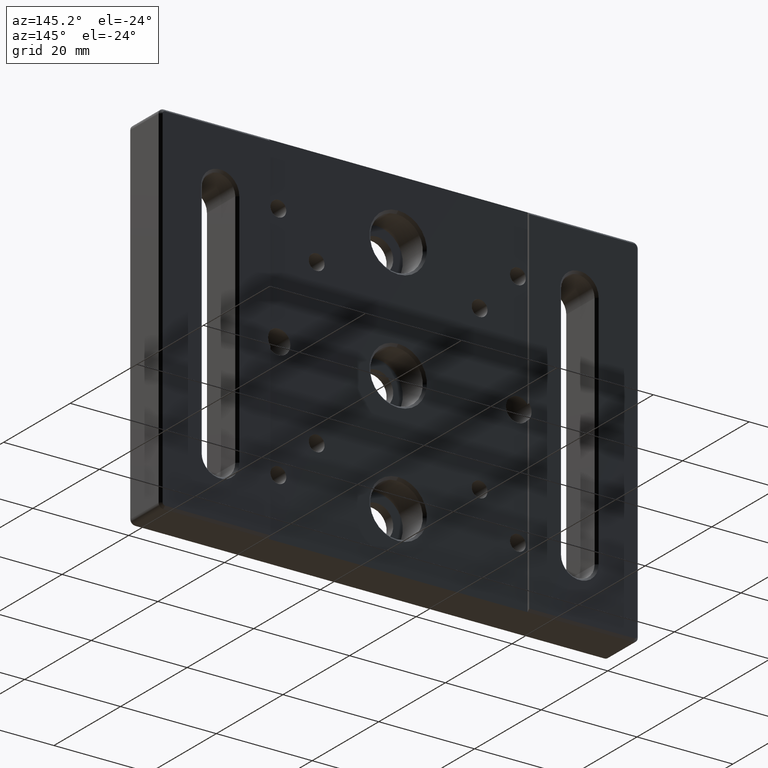
[diagram: clean part render]
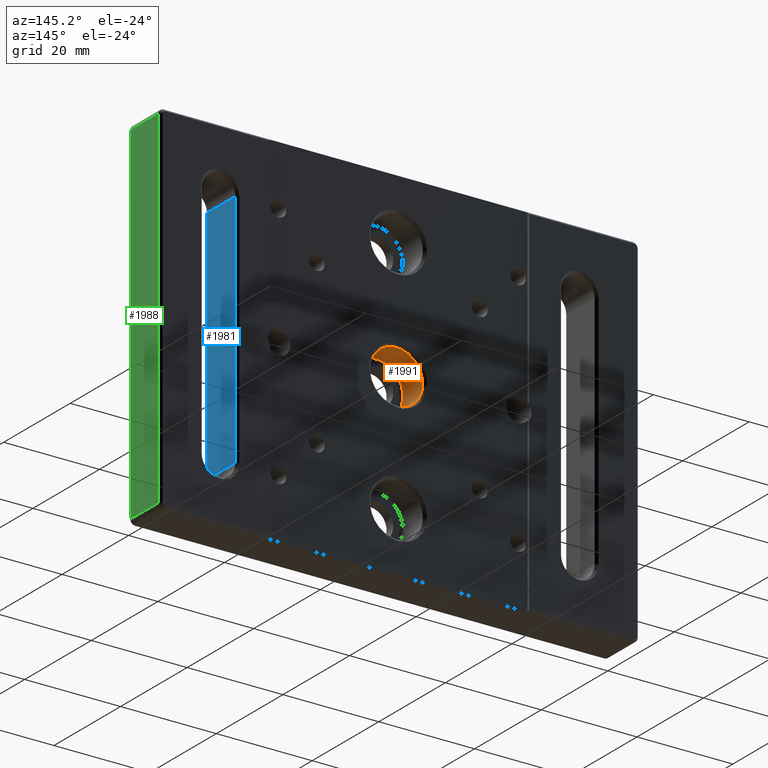
[diagram: same view with three faces highlighted in distinct colors, each labeled with its STEP entity id]
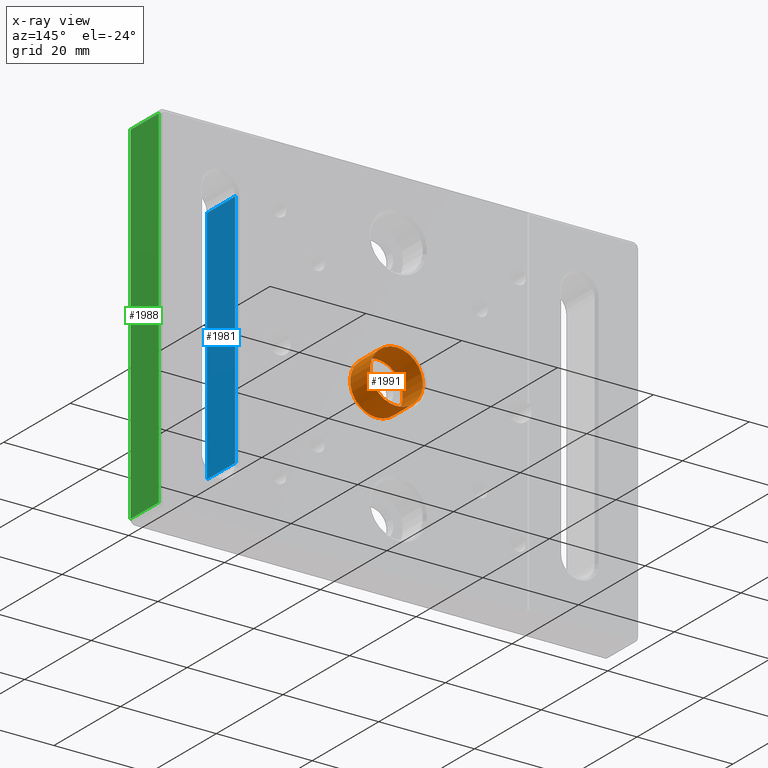
[diagram: x-ray of the same camera — body ghosted, the three highlighted faces saturated]
A machine part, auxiliary view with three faces highlighted in distinct colors.
The next image is the same camera in x-ray (body ghosted, the three faces saturated) — at least one of them is partly hidden behind the body in this view.
Their STEP definitions:

[orange] entity #1991 — the highlighted cylindrical surface (bore or boss wall) has radius 5.5 mm, axis along (-0, 1, -0).
#322 = AXIS2_PLACEMENT_3D ( 'NONE', #1350, #1347, #1343 ) ;
#368 = EDGE_CURVE ( 'NONE', #2022, #2022, #1725, .T. ) ;
#369 = EDGE_CURVE ( 'NONE', #2021, #2021, #1724, .T. ) ;
#553 = CARTESIAN_POINT ( 'NONE',  ( 50.00000000000000000, 2.499999999999999600, -32.00000000000000000 ) ) ;
#554 = CARTESIAN_POINT ( 'NONE',  ( 50.00000000000000000, 8.499999999999998200, -32.00000000000000000 ) ) ;
#637 = CARTESIAN_POINT ( 'NONE',  ( 50.00000000000000000, 2.499999999999999600, -37.50000000000000000 ) ) ;
#638 = DIRECTION ( 'NONE',  ( 0.0000000000000000000, 1.000000000000000000, 0.0000000000000000000 ) ) ;
#639 = DIRECTION ( 'NONE',  ( 0.0000000000000000000, 0.0000000000000000000, 1.000000000000000000 ) ) ;
#641 = CARTESIAN_POINT ( 'NONE',  ( 50.00000000000000000, 8.499999999999998200, -37.50000000000000000 ) ) ;
#642 = DIRECTION ( 'NONE',  ( -0.0000000000000000000, 1.000000000000000000, -0.0000000000000000000 ) ) ;
#643 = DIRECTION ( 'NONE',  ( 0.0000000000000000000, 0.0000000000000000000, 1.000000000000000000 ) ) ;
#885 = AXIS2_PLACEMENT_3D ( 'NONE', #637, #638, #639 ) ;
#886 = AXIS2_PLACEMENT_3D ( 'NONE', #641, #642, #643 ) ;
#991 = EDGE_LOOP ( 'NONE', ( #1031 ) ) ;
#1007 = EDGE_LOOP ( 'NONE', ( #1038 ) ) ;
#1031 = ORIENTED_EDGE ( 'NONE', *, *, #368, .F. ) ;
#1038 = ORIENTED_EDGE ( 'NONE', *, *, #369, .T. ) ;
#1343 = DIRECTION ( 'NONE',  ( 0.0000000000000000000, 0.0000000000000000000, 1.000000000000000000 ) ) ;
#1347 = DIRECTION ( 'NONE',  ( -0.0000000000000000000, 1.000000000000000000, -0.0000000000000000000 ) ) ;
#1350 = CARTESIAN_POINT ( 'NONE',  ( 50.00000000000000000, 2.499999999999999600, -37.50000000000000000 ) ) ;
#1724 = CIRCLE ( 'NONE', #886, 5.499999999999998200 ) ;
#1725 = CIRCLE ( 'NONE', #885, 5.499999999999998200 ) ;
#1991 = ADVANCED_FACE ( 'NONE', ( #2065, #2062 ), #2060, .F. ) ;
#2021 = VERTEX_POINT ( 'NONE', #554 ) ;
#2022 = VERTEX_POINT ( 'NONE', #553 ) ;
#2060 = CYLINDRICAL_SURFACE ( 'NONE', #322, 5.499999999999998200 ) ;
#2062 = FACE_OUTER_BOUND ( 'NONE', #991, .T. ) ;
#2065 = FACE_OUTER_BOUND ( 'NONE', #1007, .T. ) ;

[blue] entity #1981 — the highlighted planar face has unit normal (1, 0, -0).
#52 = CARTESIAN_POINT ( 'NONE',  ( 84.00000000000004300, 9.500000000000000000, -12.49999999999999600 ) ) ;
#56 = DIRECTION ( 'NONE',  ( -0.0000000000000000000, -1.000000000000000000, -0.0000000000000000000 ) ) ;
#214 = CARTESIAN_POINT ( 'NONE',  ( 84.00000000000000000, 9.500000000000000000, -62.50000000000000000 ) ) ;
#215 = DIRECTION ( 'NONE',  ( -0.0000000000000000000, -1.000000000000000000, -0.0000000000000000000 ) ) ;
#312 = AXIS2_PLACEMENT_3D ( 'NONE', #1307, #1315, #1316 ) ;
#343 = EDGE_CURVE ( 'NONE', #2363, #2354, #1765, .T. ) ;
#402 = EDGE_CURVE ( 'NONE', #966, #2377, #1678, .T. ) ;
#465 = EDGE_CURVE ( 'NONE', #2377, #2363, #1578, .T. ) ;
#523 = CARTESIAN_POINT ( 'NONE',  ( 84.00000000000004300, 0.4999999999999865700, -12.49999999999999600 ) ) ;
#537 = CARTESIAN_POINT ( 'NONE',  ( 84.00000000000004300, 9.000000000000026600, -12.49999999999999600 ) ) ;
#722 = CARTESIAN_POINT ( 'NONE',  ( 84.00000000000004300, 9.000000000000026600, -12.49999999999999600 ) ) ;
#723 = DIRECTION ( 'NONE',  ( 8.326672684688674100E-016, 0.0000000000000000000, 1.000000000000000000 ) ) ;
#819 = EDGE_CURVE ( 'NONE', #966, #2354, #1477, .T. ) ;
#966 = VERTEX_POINT ( 'NONE', #1229 ) ;
#1229 = CARTESIAN_POINT ( 'NONE',  ( 84.00000000000000000, 9.000000000000026600, -62.50000000000000000 ) ) ;
#1307 = CARTESIAN_POINT ( 'NONE',  ( 84.00000000000000000, 9.500000000000000000, -62.50000000000000000 ) ) ;
#1312 = PLANE ( 'NONE',  #312 ) ;
#1315 = DIRECTION ( 'NONE',  ( 1.000000000000000000, 0.0000000000000000000, -8.326672684688674100E-016 ) ) ;
#1316 = DIRECTION ( 'NONE',  ( -8.326672684688674100E-016, 0.0000000000000000000, -1.000000000000000000 ) ) ;
#1384 = CARTESIAN_POINT ( 'NONE',  ( 84.00000000000000000, 0.4999999999999865700, -62.50000000000000000 ) ) ;
#1461 = VECTOR ( 'NONE', #215, 1000.000000000000000 ) ;
#1477 = LINE ( 'NONE', #214, #1461 ) ;
#1573 = VECTOR ( 'NONE', #56, 1000.000000000000000 ) ;
#1578 = LINE ( 'NONE', #52, #1573 ) ;
#1675 = VECTOR ( 'NONE', #723, 1000.000000000000000 ) ;
#1678 = LINE ( 'NONE', #722, #1675 ) ;
#1758 = VECTOR ( 'NONE', #1958, 1000.000000000000000 ) ;
#1765 = LINE ( 'NONE', #1938, #1758 ) ;
#1938 = CARTESIAN_POINT ( 'NONE',  ( 84.00000000000000000, 0.4999999999999865700, -62.50000000000000000 ) ) ;
#1958 = DIRECTION ( 'NONE',  ( -8.326672684688674100E-016, 0.0000000000000000000, -1.000000000000000000 ) ) ;
#1981 = ADVANCED_FACE ( 'NONE', ( #2078 ), #1312, .T. ) ;
#2078 = FACE_OUTER_BOUND ( 'NONE', #2331, .T. ) ;
#2250 = ORIENTED_EDGE ( 'NONE', *, *, #402, .T. ) ;
#2253 = ORIENTED_EDGE ( 'NONE', *, *, #819, .F. ) ;
#2255 = ORIENTED_EDGE ( 'NONE', *, *, #343, .T. ) ;
#2258 = ORIENTED_EDGE ( 'NONE', *, *, #465, .T. ) ;
#2331 = EDGE_LOOP ( 'NONE', ( #2258, #2255, #2253, #2250 ) ) ;
#2354 = VERTEX_POINT ( 'NONE', #1384 ) ;
#2363 = VERTEX_POINT ( 'NONE', #523 ) ;
#2377 = VERTEX_POINT ( 'NONE', #537 ) ;

[green] entity #1988 — the highlighted planar face has unit normal (-1, 0, 0).
#223 = CARTESIAN_POINT ( 'NONE',  ( 99.99999999999998600, 0.4999999999999726900, -74.00000000000000000 ) ) ;
#224 = DIRECTION ( 'NONE',  ( -1.850371707708594600E-016, 0.0000000000000000000, -1.000000000000000000 ) ) ;
#229 = CARTESIAN_POINT ( 'NONE',  ( 100.0000000000000000, 9.500000000000000000, -1.000000000000000200 ) ) ;
#234 = DIRECTION ( 'NONE',  ( 0.0000000000000000000, -1.000000000000000000, 0.0000000000000000000 ) ) ;
#319 = AXIS2_PLACEMENT_3D ( 'NONE', #1334, #1340, #1341 ) ;
#826 = EDGE_CURVE ( 'NONE', #2343, #952, #1452, .T. ) ;
#827 = EDGE_CURVE ( 'NONE', #2342, #2343, #1458, .T. ) ;
#866 = EDGE_CURVE ( 'NONE', #951, #2342, #2031, .T. ) ;
#867 = EDGE_CURVE ( 'NONE', #952, #951, #2033, .T. ) ;
#951 = VERTEX_POINT ( 'NONE', #1214 ) ;
#952 = VERTEX_POINT ( 'NONE', #1215 ) ;
#1200 = CARTESIAN_POINT ( 'NONE',  ( 100.0000000000000000, 9.000000000000000000, 0.0000000000000000000 ) ) ;
#1201 = DIRECTION ( 'NONE',  ( 1.850371707708594600E-016, 0.0000000000000000000, 1.000000000000000000 ) ) ;
#1202 = CARTESIAN_POINT ( 'NONE',  ( 99.99999999999998600, 9.500000000000000000, -74.00000000000000000 ) ) ;
#1204 = DIRECTION ( 'NONE',  ( -0.0000000000000000000, 1.000000000000000000, -0.0000000000000000000 ) ) ;
#1214 = CARTESIAN_POINT ( 'NONE',  ( 99.99999999999998600, 9.000000000000000000, -74.00000000000000000 ) ) ;
#1215 = CARTESIAN_POINT ( 'NONE',  ( 99.99999999999998600, 0.5000000000000004400, -74.00000000000000000 ) ) ;
#1334 = CARTESIAN_POINT ( 'NONE',  ( 100.0000000000000000, 9.500000000000000000, 0.0000000000000000000 ) ) ;
#1338 = PLANE ( 'NONE',  #319 ) ;
#1340 = DIRECTION ( 'NONE',  ( -1.000000000000000000, 0.0000000000000000000, 1.850371707708594600E-016 ) ) ;
#1341 = DIRECTION ( 'NONE',  ( 1.850371707708594600E-016, 0.0000000000000000000, 1.000000000000000000 ) ) ;
#1374 = CARTESIAN_POINT ( 'NONE',  ( 100.0000000000000000, 0.5000000000000004400, -1.000000000000000200 ) ) ;
#1377 = CARTESIAN_POINT ( 'NONE',  ( 100.0000000000000000, 9.000000000000000000, -1.000000000000000200 ) ) ;
#1448 = VECTOR ( 'NONE', #234, 1000.000000000000000 ) ;
#1450 = VECTOR ( 'NONE', #224, 1000.000000000000000 ) ;
#1452 = LINE ( 'NONE', #223, #1450 ) ;
#1458 = LINE ( 'NONE', #229, #1448 ) ;
#1796 = ORIENTED_EDGE ( 'NONE', *, *, #867, .T. ) ;
#1797 = ORIENTED_EDGE ( 'NONE', *, *, #826, .T. ) ;
#1798 = ORIENTED_EDGE ( 'NONE', *, *, #827, .T. ) ;
#1799 = ORIENTED_EDGE ( 'NONE', *, *, #866, .T. ) ;
#1988 = ADVANCED_FACE ( 'NONE', ( #2072 ), #1338, .F. ) ;
#2031 = LINE ( 'NONE', #1200, #2110 ) ;
#2033 = LINE ( 'NONE', #1202, #2108 ) ;
#2072 = FACE_OUTER_BOUND ( 'NONE', #2312, .T. ) ;
#2108 = VECTOR ( 'NONE', #1204, 1000.000000000000000 ) ;
#2110 = VECTOR ( 'NONE', #1201, 1000.000000000000000 ) ;
#2312 = EDGE_LOOP ( 'NONE', ( #1798, #1797, #1796, #1799 ) ) ;
#2342 = VERTEX_POINT ( 'NONE', #1377 ) ;
#2343 = VERTEX_POINT ( 'NONE', #1374 ) ;